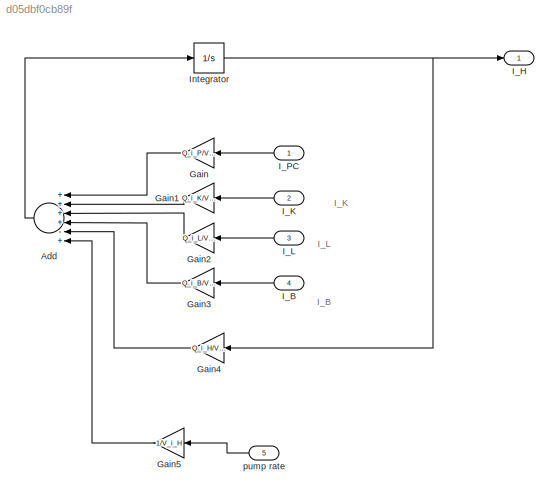
MODEL slx_d05dbf0cb89f
KIND model
CONFIG AbsTol = auto
CONFIG EnableMultiTasking = off
CONFIG FixedStep = auto
CONFIG MaxStep = auto
CONFIG MinStep = auto
CONFIG RelTol = 1e-3
CONFIG SampleTimeConstraint = Unconstrained
CONFIG Solver = VariableStepAuto
CONFIG SolverName = VariableStepAuto
CONFIG StartTime = 0.0
CONFIG StopTime = 10.0
BLOCK [Sum] Add
  InputSameDT = off
  Inputs = ++++-+
  OutDataTypeStr = Inherit: Inherit via internal rule
  Ports = [6, 1]
  SaturateOnIntegerOverflow = off
BLOCK [Gain] Gain
  Gain = Q_i_P/V_i_H
  OutDataTypeStr = Inherit: Inherit via internal rule
  ParamDataTypeStr = Inherit: Inherit via internal rule
  SaturateOnIntegerOverflow = off
BLOCK [Gain] Gain1
  Gain = Q_i_K/V_i_H
  OutDataTypeStr = Inherit: Inherit via internal rule
  ParamDataTypeStr = Inherit: Inherit via internal rule
  SaturateOnIntegerOverflow = off
BLOCK [Gain] Gain2
  Gain = Q_i_L/V_i_H
  OutDataTypeStr = Inherit: Inherit via internal rule
  ParamDataTypeStr = Inherit: Inherit via internal rule
  SaturateOnIntegerOverflow = off
BLOCK [Gain] Gain3
  Gain = Q_i_B/V_i_H
  OutDataTypeStr = Inherit: Inherit via internal rule
  ParamDataTypeStr = Inherit: Inherit via internal rule
  SaturateOnIntegerOverflow = off
BLOCK [Gain] Gain4
  Gain = Q_i_H/V_i_H
  OutDataTypeStr = Inherit: Inherit via internal rule
  ParamDataTypeStr = Inherit: Inherit via internal rule
  SaturateOnIntegerOverflow = off
BLOCK [Gain] Gain5
  Gain = 1/V_i_H
  OutDataTypeStr = Inherit: Inherit via internal rule
  ParamDataTypeStr = Inherit: Inherit via internal rule
  SaturateOnIntegerOverflow = off
BLOCK [Inport] I_B 
  IconDisplay = Port number
  Port = 4
BLOCK [Outport] I_H 
  IconDisplay = Port number
BLOCK [Inport] I_K 
  IconDisplay = Port number
  Port = 2
BLOCK [Inport] I_L 
  IconDisplay = Port number
  Port = 3
BLOCK [Inport] I_PC 
  IconDisplay = Port number
BLOCK [Integrator] Integrator
  InitialCondition = IHC_B
  LimitOutput = on
  LowerSaturationLimit = 0
  Ports = [1, 1]
BLOCK [Inport] pump rate
  IconDisplay = Port number
  Port = 5
ANNOTATION (root): I_B
ANNOTATION (root): I_K
ANNOTATION (root): I_L
LINE Add:1 -> Integrator:1
LINE Gain1:1 -> Add:2
LINE Gain2:1 -> Add:3
LINE Gain3:1 -> Add:4
LINE Gain4:1 -> Add:5
LINE Gain5:1 -> Add:6
LINE Gain:1 -> Add:1
LINE I_B :1 -> Gain3:1
LINE I_K :1 -> Gain1:1
LINE I_L :1 -> Gain2:1
LINE I_PC :1 -> Gain:1
NET Integrator:1 -> Gain4:1, I_H :1
LINE pump rate:1 -> Gain5:1
note: NET lines group one-source signal fan-out (src -> all destinations, sorted); 1:1 wires keep LINE
